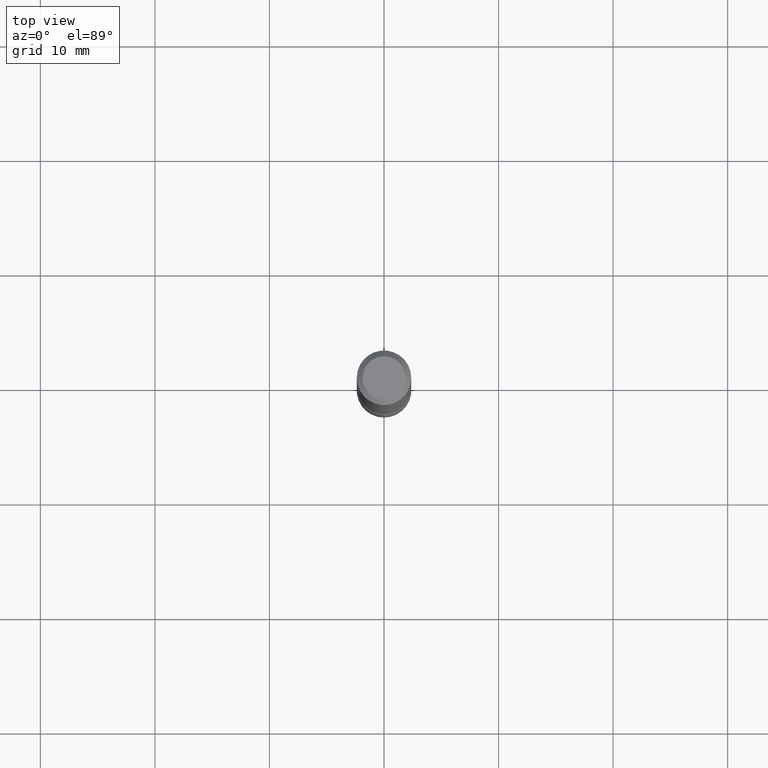
[diagram: clean part render]
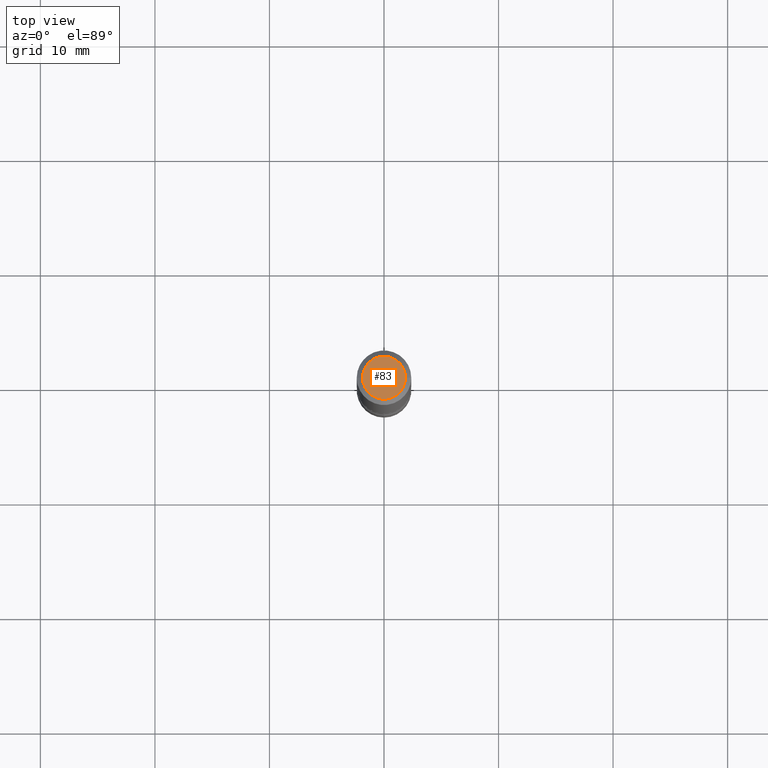
[diagram: same view with one face highlighted and labeled with its STEP entity id]
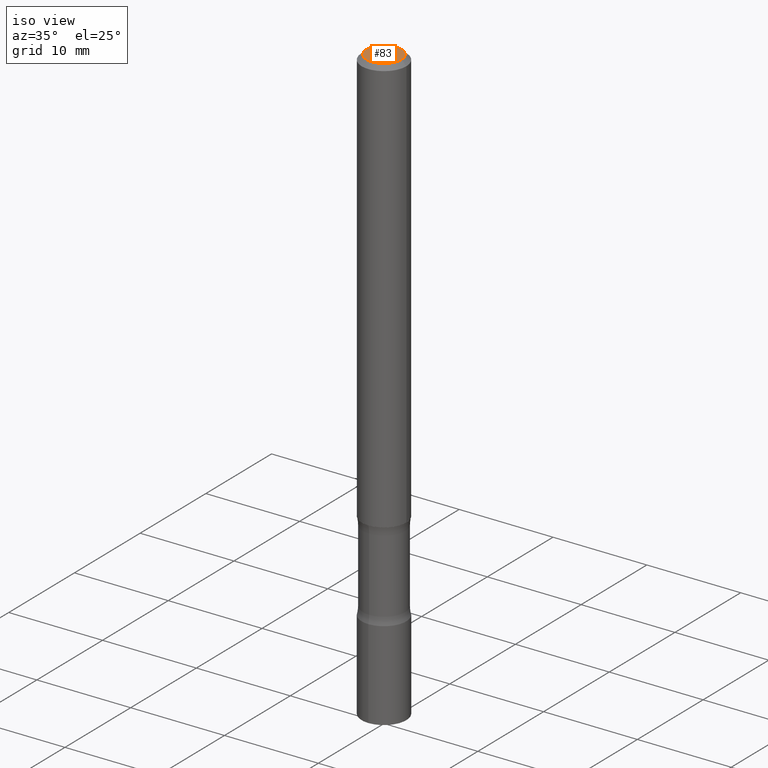
[diagram: same view with one face highlighted and labeled with its STEP entity id]
A machine part, top view. The second image highlights one B-rep face of the part: STEP entity #83.
A second angle (iso view) of the same face is appended — the face is thin or edge-on in the first view.
In plain terms, the highlighted planar face has unit normal (0, -0, -1).
Its self-contained STEP definition (entity closure, byte-faithful):
#22 = CIRCLE ( 'NONE', #302, 0.07374999999999982958 ) ;
#83 = ADVANCED_FACE ( 'NONE', ( #355 ), #250, .F. ) ;
#102 = ORIENTED_EDGE ( 'NONE', *, *, #396, .T. ) ;
#116 = CARTESIAN_POINT ( 'NONE',  ( -0.07374999999999982958, 5.499083108677920638E-16, -3.723527850031185562E-30 ) ) ;
#125 = DIRECTION ( 'NONE',  ( 2.438088387897960049E-29, -3.491481338843145188E-15, -1.000000000000000000 ) ) ;
#139 = EDGE_CURVE ( 'NONE', #414, #375, #493, .T. ) ;
#240 = DIRECTION ( 'NONE',  ( -1.000000000000000000, 6.982962677686265922E-15, -4.876176775795935793E-29 ) ) ;
#244 = DIRECTION ( 'NONE',  ( 1.000000000000000000, -6.982962677686266711E-15, 4.876176775795935793E-29 ) ) ;
#249 = DIRECTION ( 'NONE',  ( 1.000000000000000000, -6.982962677686266711E-15, 4.876176775795935793E-29 ) ) ;
#250 = PLANE ( 'NONE',  #263 ) ;
#263 = AXIS2_PLACEMENT_3D ( 'NONE', #358, #125, #240 ) ;
#271 = EDGE_LOOP ( 'NONE', ( #102, #326 ) ) ;
#302 = AXIS2_PLACEMENT_3D ( 'NONE', #350, #345, #244 ) ;
#326 = ORIENTED_EDGE ( 'NONE', *, *, #139, .T. ) ;
#345 = DIRECTION ( 'NONE',  ( -2.445468806185136597E-29, 3.491481338843145583E-15, 1.000000000000000000 ) ) ;
#350 = CARTESIAN_POINT ( 'NONE',  ( 0.000000000000000000, 0.000000000000000000, 0.000000000000000000 ) ) ;
#353 = CARTESIAN_POINT ( 'NONE',  ( 0.000000000000000000, 0.000000000000000000, 0.000000000000000000 ) ) ;
#355 = FACE_OUTER_BOUND ( 'NONE', #271, .T. ) ;
#358 = CARTESIAN_POINT ( 'NONE',  ( 5.149934974793609077E-16, 0.07374999999999982958, -2.574967487396813906E-16 ) ) ;
#375 = VERTEX_POINT ( 'NONE', #116 ) ;
#396 = EDGE_CURVE ( 'NONE', #375, #414, #22, .T. ) ;
#414 = VERTEX_POINT ( 'NONE', #465 ) ;
#438 = DIRECTION ( 'NONE',  ( -2.445468806185136597E-29, 3.491481338843145583E-15, 1.000000000000000000 ) ) ;
#465 = CARTESIAN_POINT ( 'NONE',  ( 0.07374999999999982958, -6.094815207017959226E-16, 3.931526600461596647E-30 ) ) ;
#477 = AXIS2_PLACEMENT_3D ( 'NONE', #353, #438, #249 ) ;
#493 = CIRCLE ( 'NONE', #477, 0.07374999999999982958 ) ;